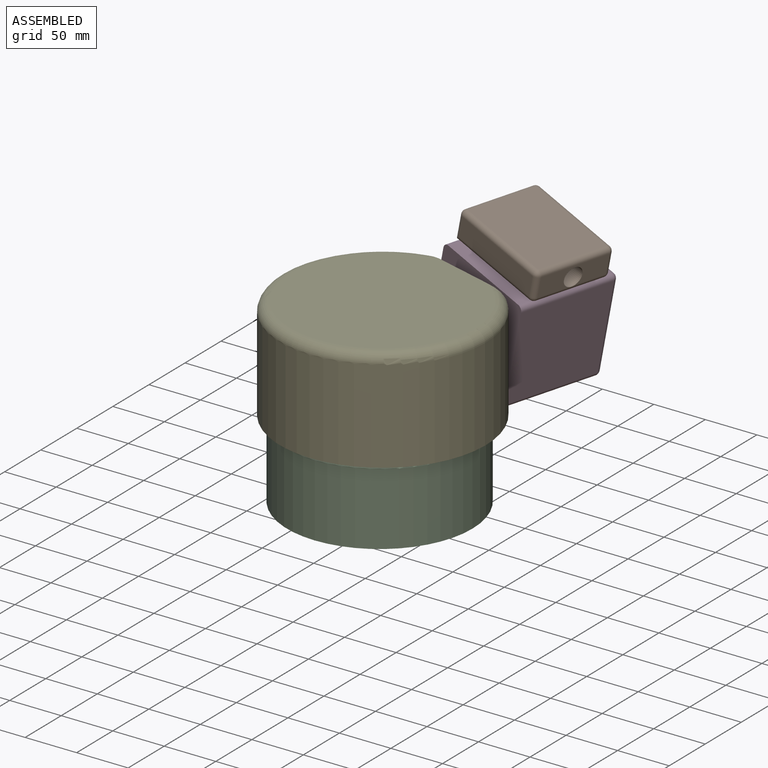
[diagram: assembled view]
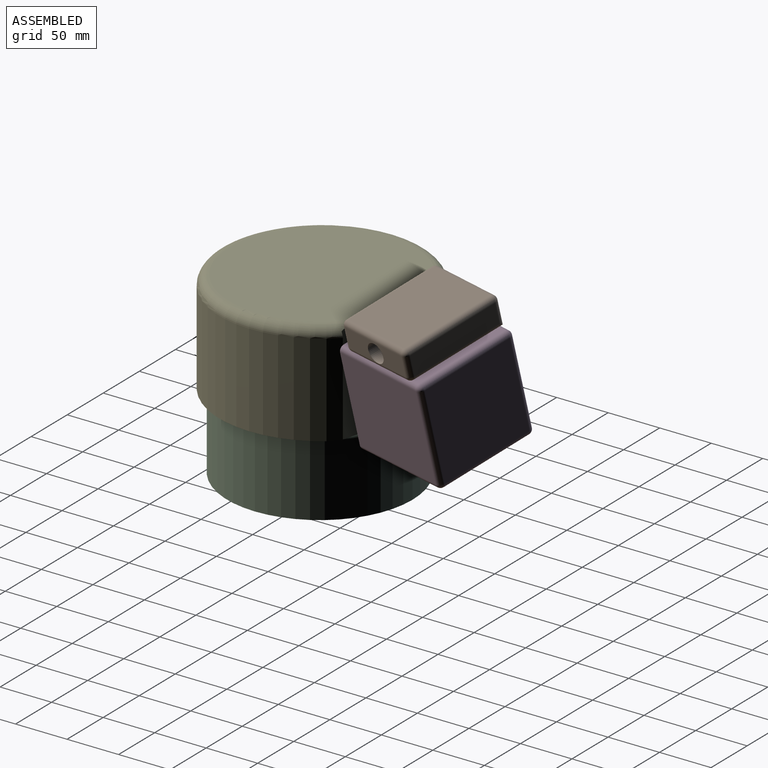
[diagram: assembled view, second angle]
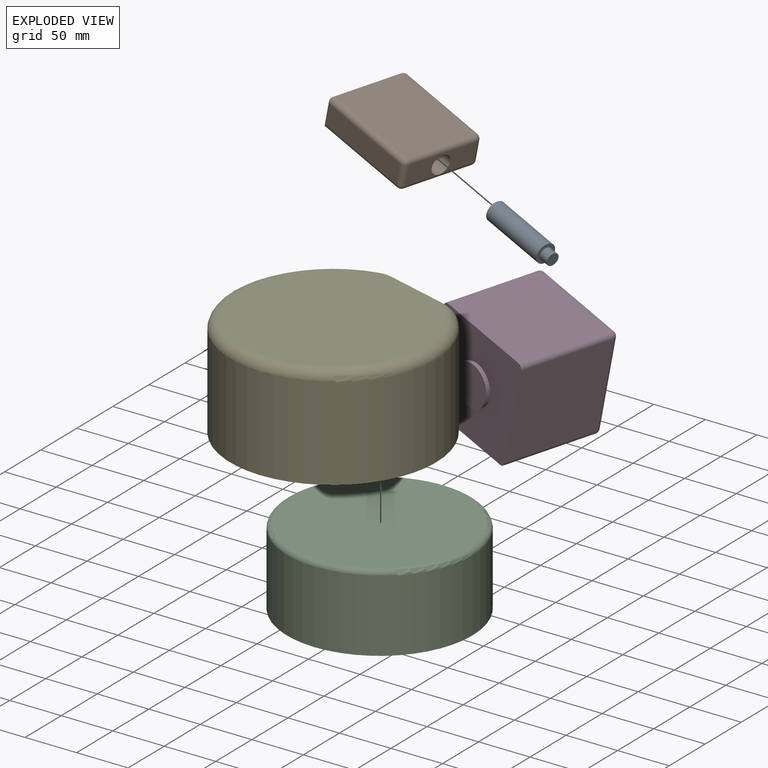
[diagram: exploded view]
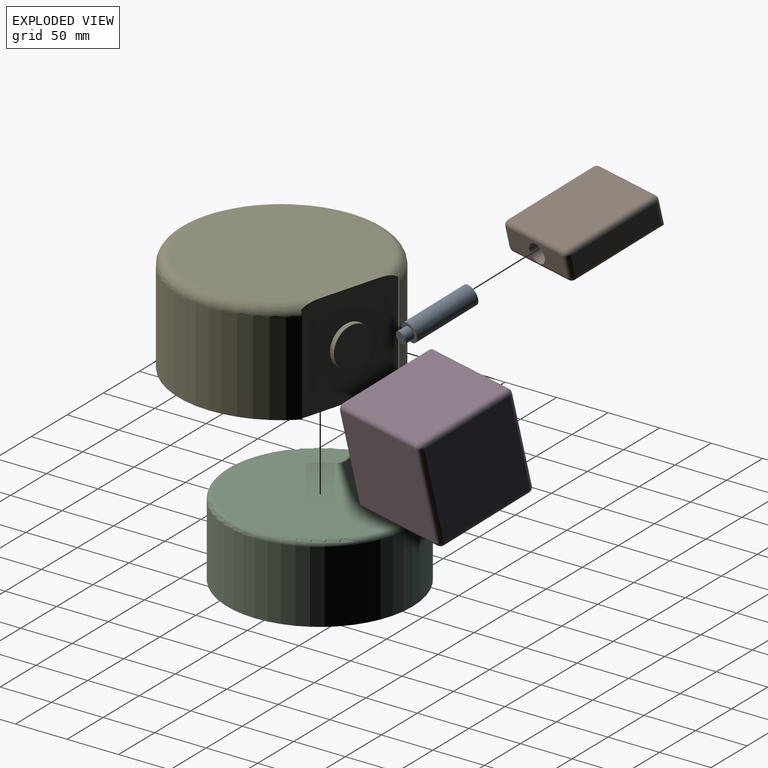
[diagram: exploded view, second angle]
ASSEMBLY  parts=5 mates=6
PART A: 7 faces, bbox 19x73.6x19 mm
  f0: cylinder r=9.5mm len=64.6mm, axis (0,1,0), area 3856mm2, adj f1,f2
  f1: plane 19x19mm, normal (0,-1,0), area 56.5mm2, adj f0,f5
  f2: plane 19x19mm, normal (0,1,0), area 170.4mm2, adj f0,f3
  f3: cylinder r=6mm len=12mm, axis (0,-1,0), area 339.3mm2, adj f2,f4
  f4: plane 12x12mm, normal (0,1,0), area 113.1mm2, adj f3
  f5: cylinder r=8.5mm len=17mm, axis (0,-1,0), area 106.8mm2, adj f1,f6
  f6: plane 17x17mm, normal (0,-1,0), area 227mm2, adj f5
PART B: 24 faces, bbox 80x100x30 mm
  f0: plane 70x25mm, normal (0,-1,0), area 1466.5mm2, adj f5,f9,f17,f22,f23
  f1: plane 90x20mm, normal (1,0,0), area 1800mm2, adj f15,f18,f21,f22
  f2: plane 70x20mm, normal (0,1,0), area 1118.5mm2, adj f7,f11,f15,f16,f23
  f3: plane 90x20mm, normal (-1,0,0), area 1800mm2, adj f7,f8,f9,f10
  f4: plane 90x70mm, normal (0,0,1), area 6300mm2, adj f10,f11,f17,f18
  f5: plane 95x70mm, normal (0,0,-1), area 6650mm2, adj f0,f8,f16,f21
  f6: sphere r=5mm, area 39.3mm2, adj f7,f10,f11
  f7: cylinder r=5mm len=20mm, axis (0,0,1), area 157.1mm2, adj f2,f3,f6,f12
  f8: cylinder r=5mm len=95mm, axis (0,-1,0), area 731.9mm2, adj f3,f5,f9,f12
  f9: cylinder r=5mm len=25mm, axis (0,0,-1), area 182.1mm2, adj f0,f3,f8,f13
  f10: cylinder r=5mm len=90mm, axis (0,1,0), area 706.9mm2, adj f3,f4,f6,f13
  f11: cylinder r=5mm len=70mm, axis (1,0,0), area 549.8mm2, adj f2,f4,f6,f14
  f12: sphere r=5mm, area 39.3mm2, adj f7,f8,f16
  f13: sphere r=5mm, area 39.3mm2, adj f9,f10,f17
  f14: sphere r=5mm, area 39.3mm2, adj f11,f15,f18
  f15: cylinder r=5mm len=20mm, axis (0,0,-1), area 157.1mm2, adj f1,f2,f14,f19
  f16: cylinder r=5mm len=70mm, axis (-1,0,0), area 547.7mm2, adj f2,f5,f12,f19,f23
  f17: cylinder r=5mm len=70mm, axis (-1,0,0), area 549.8mm2, adj f0,f4,f13,f20
  f18: cylinder r=5mm len=90mm, axis (0,-1,0), area 706.9mm2, adj f1,f4,f14,f20
  f19: sphere r=5mm, area 39.3mm2, adj f15,f16,f21
  f20: sphere r=5mm, area 39.3mm2, adj f17,f18,f22
  f21: cylinder r=5mm len=95mm, axis (0,1,0), area 731.9mm2, adj f1,f5,f19,f22
  f22: cylinder r=5mm len=25mm, axis (0,0,1), area 182.1mm2, adj f0,f1,f20,f21
  f23: cylinder r=9.5mm len=100mm, axis (0,-1,0), area 5968.9mm2, adj f0,f2,f16
PART C: 4 faces, bbox 194.8x194.8x75 mm
  f0: cylinder r=90mm len=180mm, axis (0,0,-1), area 39584.1mm2, adj f2,f3
  f1: plane 170x170mm, normal (0,0,1), area 22698mm2, adj f3
  f2: plane 180x180mm, normal (0,0,-1), area 25446.9mm2, adj f0
  f3: torus R=85mm, axis (0,0,1), area 4351.7mm2, adj f0,f1
PART D: 25 faces, bbox 100x104x100 mm
  f0: plane 95x90mm, normal (-1,0,0), area 2150mm2, adj f1,f6,f7,f8,f9,f11,f12,f13
  f1: plane 100x100mm, normal (0,-1,0), area 8721.9mm2, adj f0,f2,f4,f5,f11,f13,f16,f19
  f2: plane 95x90mm, normal (1,0,0), area 8550mm2, adj f1,f16,f19,f22
  f3: plane 90x90mm, normal (0,1,0), area 8100mm2, adj f12,f17,f18,f22
  f4: plane 95x90mm, normal (0,0,1), area 8550mm2, adj f1,f11,f16,f17
  f5: plane 95x90mm, normal (0,0,-1), area 8550mm2, adj f1,f13,f18,f19
  f6: plane 80x3mm, normal (0,0,1), area 240mm2, adj f0,f7,f9,f10
  f7: plane 80x3mm, normal (0,1,0), area 240mm2, adj f0,f6,f8,f10
  f8: plane 80x3mm, normal (0,0,-1), area 240mm2, adj f0,f7,f9,f10
  f9: plane 80x3mm, normal (0,-1,0), area 240mm2, adj f0,f6,f8,f10
  f10: plane 80x80mm, normal (-1,0,0), area 6400mm2, adj f6,f7,f8,f9
  f11: cylinder r=5mm len=95mm, axis (0,1,0), area 746.1mm2, adj f0,f1,f4,f14
  f12: cylinder r=5mm len=90mm, axis (0,0,1), area 706.9mm2, adj f0,f3,f14,f15
  f13: cylinder r=5mm len=95mm, axis (0,-1,0), area 746.1mm2, adj f0,f1,f5,f15
  f14: sphere r=5mm, area 39.3mm2, adj f11,f12,f17
  f15: sphere r=5mm, area 39.3mm2, adj f12,f13,f18
  f16: cylinder r=5mm len=95mm, axis (0,-1,0), area 746.1mm2, adj f1,f2,f4,f20
  f17: cylinder r=5mm len=90mm, axis (1,0,0), area 706.9mm2, adj f3,f4,f14,f20
  f18: cylinder r=5mm len=90mm, axis (-1,0,0), area 706.9mm2, adj f3,f5,f15,f21
  f19: cylinder r=5mm len=95mm, axis (0,1,0), area 746.1mm2, adj f1,f2,f5,f21
  f20: sphere r=5mm, area 39.3mm2, adj f16,f17,f22
  f21: sphere r=5mm, area 39.3mm2, adj f18,f19,f22
  f22: cylinder r=5mm len=90mm, axis (0,0,-1), area 706.9mm2, adj f2,f3,f20,f21
  f23: cylinder r=20mm len=40mm, axis (0,1,0), area 502.7mm2, adj f1,f24
  f24: plane 40x40mm, normal (0,-1,0), area 1256.6mm2, adj f23
PART E: 9 faces, bbox 210.5x216.5x100 mm
  f0: cylinder r=100mm len=200mm, axis (0,0,-1), area 47123.9mm2, adj f1,f3,f4,f6
  f1: plane 200x186.6mm, normal (0,0,-1), area 30349.8mm2, adj f0,f4,f5,f6
  f2: plane 180x175mm, normal (0,0,1), area 25248.6mm2, adj f3,f5
  f3: torus R=90mm, axis (0,0,1), area 8059.5mm2, adj f0,f2,f4,f5,f6
  f4: plane 95.08x1.61mm, normal (0,1,0), area 149.7mm2, adj f0,f1,f3,f5
  f5: plane 100.01x100mm, normal (-1,0,0), area 8690.9mm2, adj f1,f2,f3,f4,f6,f7
  f6: plane 95.08x1.61mm, normal (0,-1,0), area 149.7mm2, adj f0,f1,f3,f5
  f7: cylinder r=20mm len=40mm, axis (1,0,0), area 628.3mm2, adj f5,f8
  f8: plane 40x40mm, normal (-1,0,0), area 1256.6mm2, adj f7
PLACE A rot(axis=(-0.79,-0.6,0.08),170.2deg) t=(66.57,133.74,146.82)mm
PLACE B rot(axis=(-0.09,0.11,-0.99),106.2deg) t=(49.82,138.43,136.5)mm
PLACE C t=(-0.79,-0.26,-37.2)mm fixed
PLACE D rot(axis=(0.09,0.64,-0.76),20.4deg) t=(27.98,144.55,39.11)mm
PLACE E rot(axis=(0,0,-1),105.6deg) t=(0.07,2.83,37.8)mm
MATE planar B.f5 <-> D.f4  axis (-0.22,0.06,-0.97) through (92.03,126.61,126.29)mm
MATE revolute E.f1 <-> C.f0  axis (0,0,-1) through (-0.79,-0.26,37.8)mm
MATE planar B.f0 <-> D.f0  axis (-0.94,0.26,0.23) through (5.6,150.82,159.73)mm
MATE planar B.f3 <-> D.f23  axis (0.27,0.96,0) through (63.89,176.03,151.11)mm
MATE revolute A.f5 <-> B.f23  axis (-0.94,0.26,0.23) through (5.99,150.71,161.47)mm
MATE revolute E.f7 <-> D.f23  axis (0.27,0.96,0) through (24.34,89.49,87.8)mm
